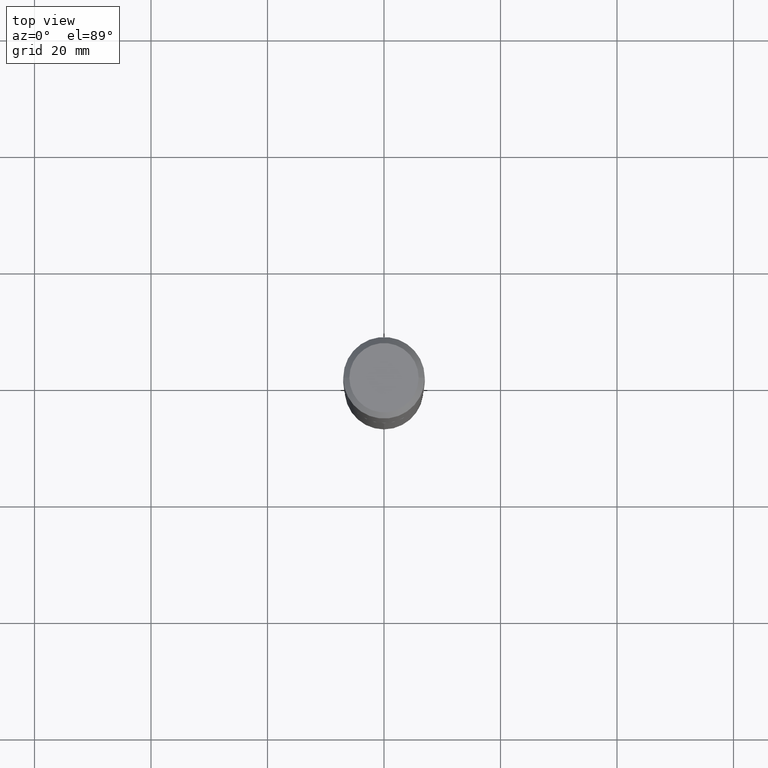
[diagram: clean part render]
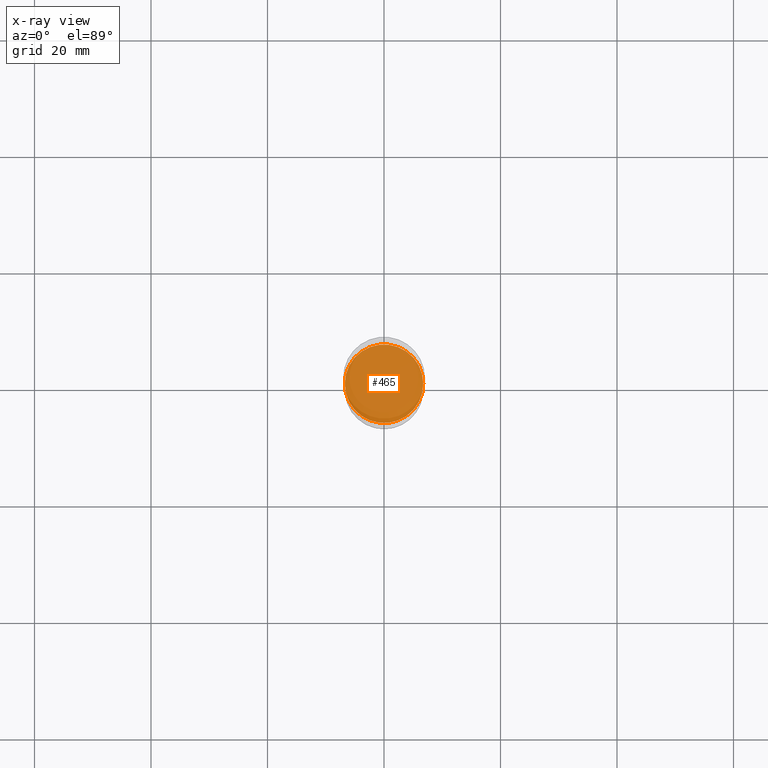
[diagram: x-ray — body ghosted, one internal face saturated and labeled with its STEP entity id]
A machine part, top view, then the same camera in x-ray: the body is ghosted and one INTERNAL B-rep face — a face not visible from any outside direction — is saturated and labeled: STEP entity #465.
In plain terms, the highlighted planar face has unit normal (-0, 0, 1).
Its self-contained STEP definition (entity closure, byte-faithful):
#8 = VERTEX_POINT ( 'NONE', #153 ) ;
#9 = AXIS2_PLACEMENT_3D ( 'NONE', #249, #128, #173 ) ;
#18 = DIRECTION ( 'NONE',  ( 1.000000000000000000, -6.982962677686265922E-15, 0.000000000000000000 ) ) ;
#97 = CARTESIAN_POINT ( 'NONE',  ( 5.824862149452375369E-29, -8.316359400990487656E-15, -2.381899999999999462 ) ) ;
#123 = DIRECTION ( 'NONE',  ( 1.000000000000000000, -6.982962677686265922E-15, 4.876176775795935793E-29 ) ) ;
#128 = DIRECTION ( 'NONE',  ( -2.445468806185136597E-29, 3.491481338843145583E-15, 1.000000000000000000 ) ) ;
#153 = CARTESIAN_POINT ( 'NONE',  ( 0.2652499999999999858, -1.016859025124677000E-14, -2.381899999999999462 ) ) ;
#155 = AXIS2_PLACEMENT_3D ( 'NONE', #97, #396, #18 ) ;
#173 = DIRECTION ( 'NONE',  ( 1.000000000000000000, -6.982962677686265922E-15, 0.000000000000000000 ) ) ;
#178 = AXIS2_PLACEMENT_3D ( 'NONE', #474, #241, #123 ) ;
#189 = VERTEX_POINT ( 'NONE', #467 ) ;
#204 = EDGE_CURVE ( 'NONE', #189, #8, #256, .T. ) ;
#216 = EDGE_CURVE ( 'NONE', #8, #189, #305, .T. ) ;
#241 = DIRECTION ( 'NONE',  ( -2.438088387897960049E-29, 3.491481338843145188E-15, 1.000000000000000000 ) ) ;
#249 = CARTESIAN_POINT ( 'NONE',  ( 5.824862149452375369E-29, -8.316359400990487656E-15, -2.381899999999999462 ) ) ;
#256 = CIRCLE ( 'NONE', #9, 0.2652499999999999858 ) ;
#271 = ORIENTED_EDGE ( 'NONE', *, *, #204, .F. ) ;
#277 = FACE_OUTER_BOUND ( 'NONE', #330, .T. ) ;
#305 = CIRCLE ( 'NONE', #155, 0.2652499999999999858 ) ;
#330 = EDGE_LOOP ( 'NONE', ( #461, #271 ) ) ;
#393 = PLANE ( 'NONE',  #178 ) ;
#396 = DIRECTION ( 'NONE',  ( -2.445468806185136597E-29, 3.491481338843145583E-15, 1.000000000000000000 ) ) ;
#461 = ORIENTED_EDGE ( 'NONE', *, *, #216, .F. ) ;
#465 = ADVANCED_FACE ( 'NONE', ( #277 ), #393, .F. ) ;
#467 = CARTESIAN_POINT ( 'NONE',  ( -0.2652499999999999858, -6.428995567212710813E-15, -2.381899999999999462 ) ) ;
#474 = CARTESIAN_POINT ( 'NONE',  ( 5.824862149452375369E-29, -8.316359400990487656E-15, -2.381899999999999462 ) ) ;